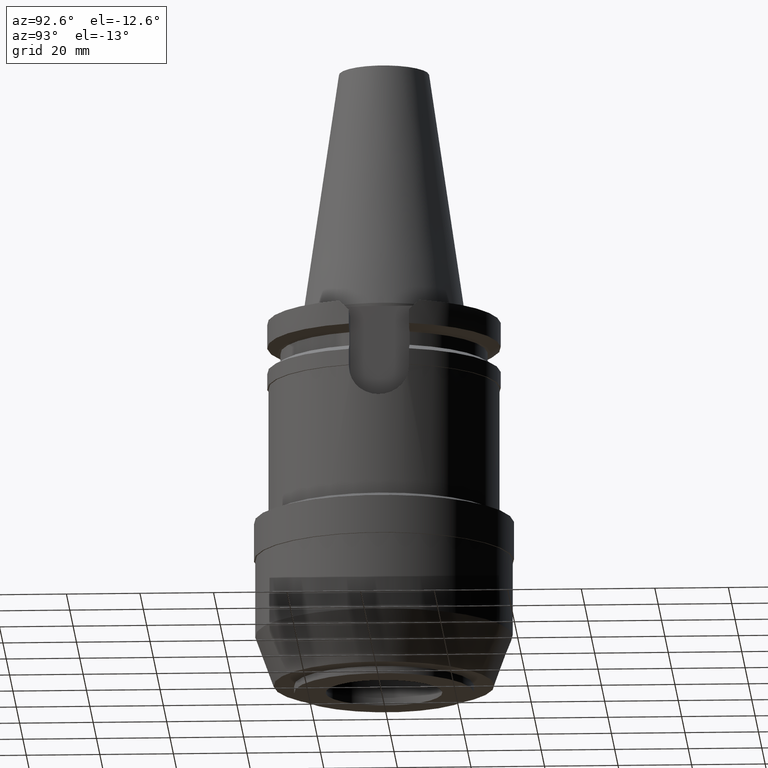
[diagram: clean part render]
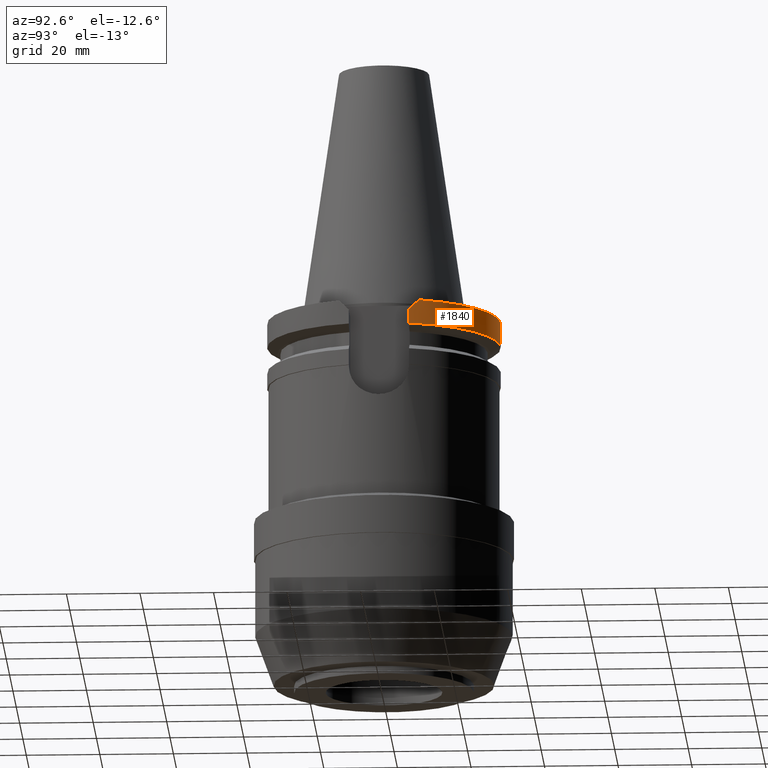
[diagram: same view with one face highlighted and labeled with its STEP entity id]
A machine part, auxiliary view. The second image highlights one B-rep face of the part: STEP entity #1840.
In plain terms, the highlighted cylindrical surface (partial cylindrical patch) has radius 31.75 mm, axis along (0, 0, 1).
Its self-contained STEP definition (entity closure, byte-faithful):
#99=CARTESIAN_POINT('',(0.E0,0.E0,-9.999999999999E-1));
#100=DIRECTION('',(0.E0,0.E0,-1.E0));
#101=DIRECTION('',(-9.393382785306E-1,3.429921259843E-1,0.E0));
#102=AXIS2_PLACEMENT_3D('',#99,#100,#101);
#107=CARTESIAN_POINT('',(0.E0,0.E0,-9.999999999999E-1));
#108=DIRECTION('',(0.E0,0.E0,-1.E0));
#109=DIRECTION('',(0.E0,1.E0,0.E0));
#110=AXIS2_PLACEMENT_3D('',#107,#108,#109);
#175=CARTESIAN_POINT('',(2.982399034335E1,1.089E1,-1.000000000001E0));
#176=CARTESIAN_POINT('',(3.015017741992E1,9.996685011754E0,-1.893314988246E0));
#177=CARTESIAN_POINT('',(3.043345108244E1,9.096596073173E0,-2.793403926827E0));
#178=CARTESIAN_POINT('',(3.067550162589E1,8.19E0,-3.7E0));
#197=DIRECTION('',(4.150065253772E-8,-1.554402508559E-7,1.E0));
#198=VECTOR('',#197,3.901327811811E0);
#199=CARTESIAN_POINT('',(3.067550146398E1,8.190000606423E0,-7.601327811811E0));
#200=LINE('',#199,#198);
#204=DIRECTION('',(-8.604244705208E-9,-3.222673232175E-8,-1.E0));
#205=VECTOR('',#204,3.901334354435E0);
#206=CARTESIAN_POINT('',(-3.067550162589E1,8.19E0,-3.7E0));
#207=LINE('',#206,#205);
#399=CARTESIAN_POINT('',(0.E0,0.E0,-7.601333230926E0));
#400=DIRECTION('',(0.E0,0.E0,1.E0));
#401=DIRECTION('',(9.661575315241E-1,2.579527559055E-1,0.E0));
#402=AXIS2_PLACEMENT_3D('',#399,#400,#401);
#407=CARTESIAN_POINT('',(0.E0,0.E0,-7.601333230926E0));
#408=DIRECTION('',(0.E0,0.E0,1.E0));
#409=DIRECTION('',(0.E0,1.E0,0.E0));
#410=AXIS2_PLACEMENT_3D('',#407,#408,#409);
#1414=CARTESIAN_POINT('',(-3.067550162589E1,8.19E0,-3.7E0));
#1415=CARTESIAN_POINT('',(-3.043345108244E1,9.096596073173E0,
-2.793403926827E0));
#1416=CARTESIAN_POINT('',(-3.015017741992E1,9.996685011754E0,
-1.893314988246E0));
#1417=CARTESIAN_POINT('',(-2.982399034335E1,1.089E1,-1.000000000001E0));
#1478=CARTESIAN_POINT('',(-2.982399034335E1,1.089E1,-1.E0));
#1479=VERTEX_POINT('',#1478);
#1480=CARTESIAN_POINT('',(0.E0,3.175E1,-9.999999999999E-1));
#1481=CARTESIAN_POINT('',(2.982399034335E1,1.089E1,-9.999999999999E-1));
#1482=VERTEX_POINT('',#1480);
#1483=VERTEX_POINT('',#1481);
#1494=VERTEX_POINT('',#178);
#1504=CARTESIAN_POINT('',(3.067550146398E1,8.190000606423E0,-7.601327811811E0));
#1505=VERTEX_POINT('',#1504);
#1506=VERTEX_POINT('',#1414);
#1507=CARTESIAN_POINT('',(-3.067550165946E1,8.189999874273E0,
-7.601334354435E0));
#1508=VERTEX_POINT('',#1507);
#1509=CARTESIAN_POINT('',(0.E0,3.175E1,-7.601333230926E0));
#1510=VERTEX_POINT('',#1509);
#1820=CARTESIAN_POINT('',(0.E0,0.E0,-1.121925E2));
#1821=DIRECTION('',(0.E0,0.E0,1.E0));
#1822=DIRECTION('',(0.E0,1.E0,0.E0));
#1823=AXIS2_PLACEMENT_3D('',#1820,#1821,#1822);
#1824=CYLINDRICAL_SURFACE('',#1823,3.175E1);
#1826=ORIENTED_EDGE('',*,*,#1825,.T.);
#1827=ORIENTED_EDGE('',*,*,#1811,.F.);
#1828=ORIENTED_EDGE('',*,*,#1774,.F.);
#1829=ORIENTED_EDGE('',*,*,#1772,.F.);
#1831=ORIENTED_EDGE('',*,*,#1830,.F.);
#1833=ORIENTED_EDGE('',*,*,#1832,.T.);
#1835=ORIENTED_EDGE('',*,*,#1834,.F.);
#1837=ORIENTED_EDGE('',*,*,#1836,.F.);
#1838=EDGE_LOOP('',(#1826,#1827,#1828,#1829,#1831,#1833,#1835,#1837));
#1839=FACE_OUTER_BOUND('',#1838,.F.);
#103=CIRCLE('',#102,3.175E1);
#111=CIRCLE('',#110,3.175E1);
#179=B_SPLINE_CURVE_WITH_KNOTS('',3,(#175,#176,#177,#178),.UNSPECIFIED.,.F.,.F.,
(4,4),(0.E0,1.E0),.UNSPECIFIED.);
#403=CIRCLE('',#402,3.175E1);
#411=CIRCLE('',#410,3.175E1);
#1418=B_SPLINE_CURVE_WITH_KNOTS('',3,(#1414,#1415,#1416,#1417),.UNSPECIFIED.,
.F.,.F.,(4,4),(0.E0,1.E0),.UNSPECIFIED.);
#1772=EDGE_CURVE('',#1479,#1482,#103,.T.);
#1774=EDGE_CURVE('',#1482,#1483,#111,.T.);
#1811=EDGE_CURVE('',#1483,#1494,#179,.T.);
#1825=EDGE_CURVE('',#1505,#1494,#200,.T.);
#1830=EDGE_CURVE('',#1506,#1479,#1418,.T.);
#1832=EDGE_CURVE('',#1506,#1508,#207,.T.);
#1834=EDGE_CURVE('',#1510,#1508,#411,.T.);
#1836=EDGE_CURVE('',#1505,#1510,#403,.T.);
#1840=ADVANCED_FACE('',(#1839),#1824,.T.);